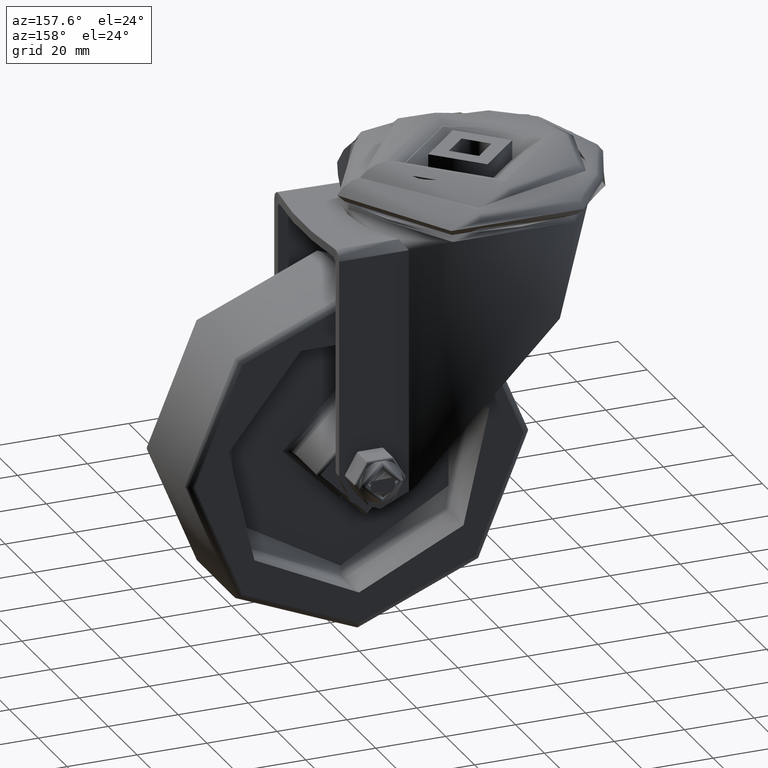
[diagram: clean part render]
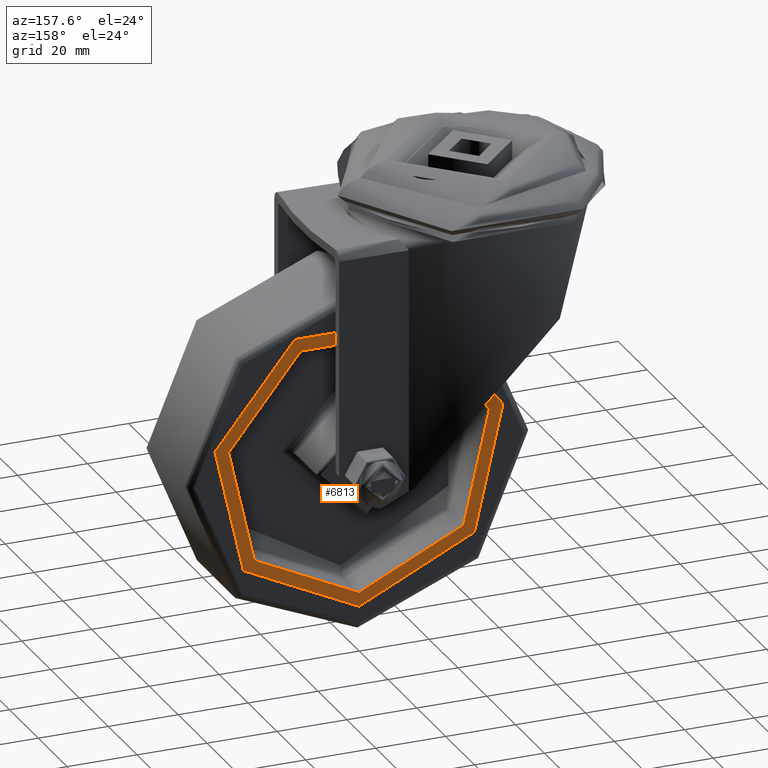
[diagram: same view with one face highlighted and labeled with its STEP entity id]
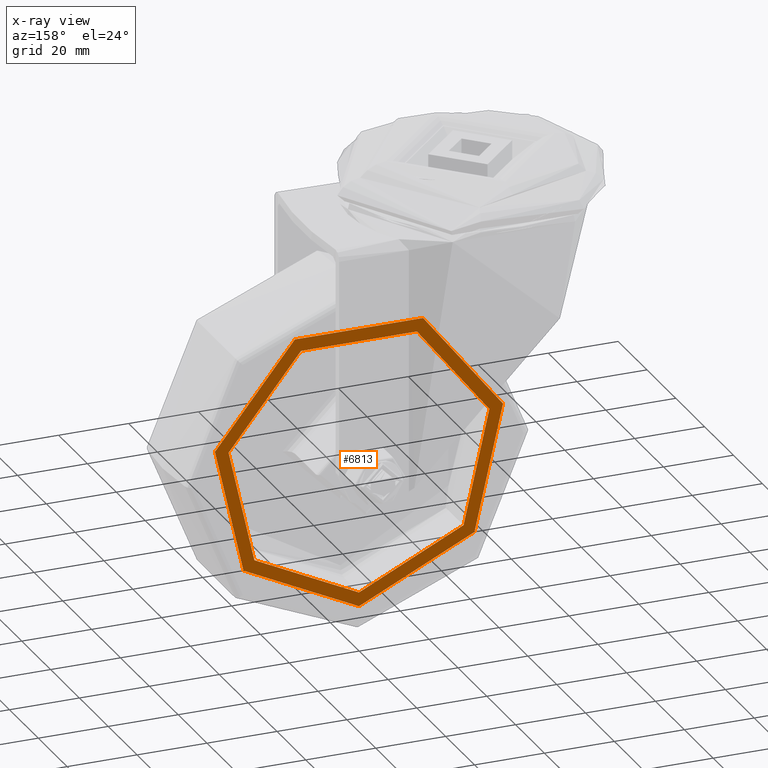
[diagram: x-ray of the same camera — body ghosted, the highlighted face saturated]
A machine part, auxiliary view. The second image highlights one B-rep face of the part: STEP entity #6813.
The next image is the same camera in x-ray: the body ghosted, the highlighted face saturated — about 0% of this face is hidden behind the body in this view.
In plain terms, the highlighted planar face has unit normal (0, 1, 0).
Its self-contained STEP definition (entity closure, byte-faithful):
#445=FACE_BOUND('',#1245,.T.);
#518=PLANE('',#7484);
#797=FACE_OUTER_BOUND('',#1244,.T.);
#1244=EDGE_LOOP('',(#5066));
#1245=EDGE_LOOP('',(#5067));
#2607=CIRCLE('',#7436,38.25);
#2634=CIRCLE('',#7476,42.25);
#3024=VERTEX_POINT('',#11672);
#3045=VERTEX_POINT('',#11740);
#3741=EDGE_CURVE('',#3024,#3024,#2607,.T.);
#3776=EDGE_CURVE('',#3045,#3045,#2634,.T.);
#5066=ORIENTED_EDGE('',*,*,#3776,.T.);
#5067=ORIENTED_EDGE('',*,*,#3741,.F.);
#6813=ADVANCED_FACE('',(#797,#445),#518,.T.);
#7436=AXIS2_PLACEMENT_3D('',#11673,#8520,#8521);
#7476=AXIS2_PLACEMENT_3D('',#11742,#8608,#8609);
#7484=AXIS2_PLACEMENT_3D('',#11750,#8624,#8625);
#8520=DIRECTION('center_axis',(0.,1.,0.));
#8521=DIRECTION('ref_axis',(0.,0.,1.));
#8608=DIRECTION('center_axis',(0.,1.,0.));
#8609=DIRECTION('ref_axis',(0.,0.,1.));
#8624=DIRECTION('center_axis',(0.,1.,4.33680868994204E-16));
#8625=DIRECTION('ref_axis',(0.,4.33680868994204E-16,-1.));
#11672=CARTESIAN_POINT('',(4.68427400673863E-15,15.,-38.25));
#11673=CARTESIAN_POINT('Origin',(0.,15.,0.));
#11740=CARTESIAN_POINT('',(5.17413272639757E-15,15.,-42.25));
#11742=CARTESIAN_POINT('Origin',(0.,15.,0.));
#11750=CARTESIAN_POINT('Origin',(0.,15.,40.25));